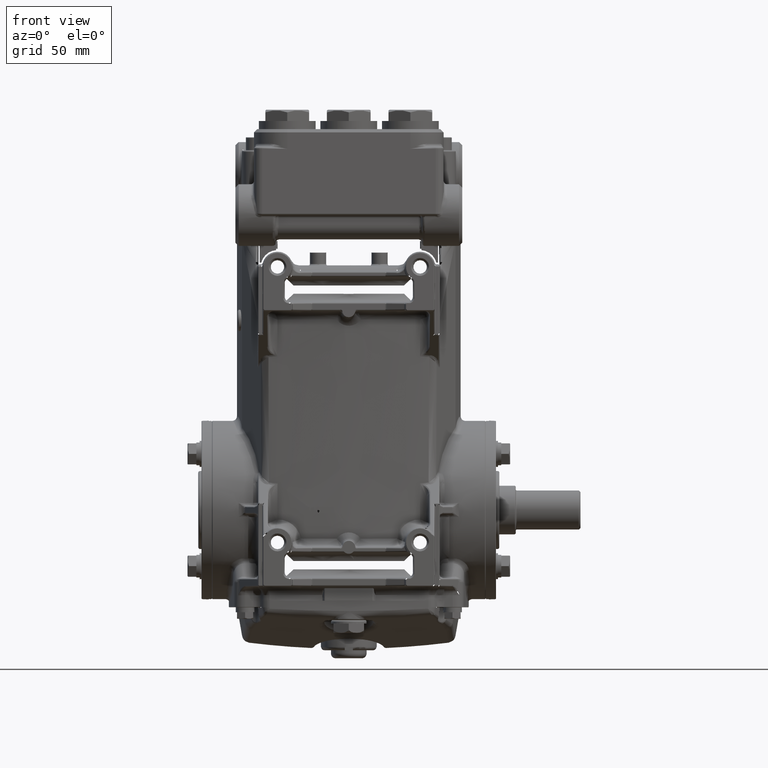
[diagram: clean part render]
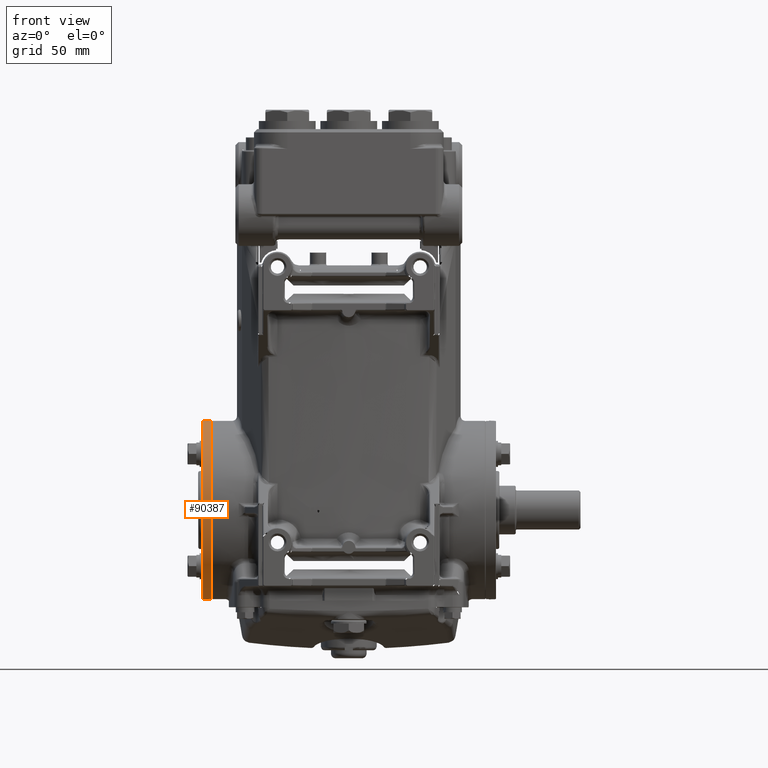
[diagram: same view with one face highlighted and labeled with its STEP entity id]
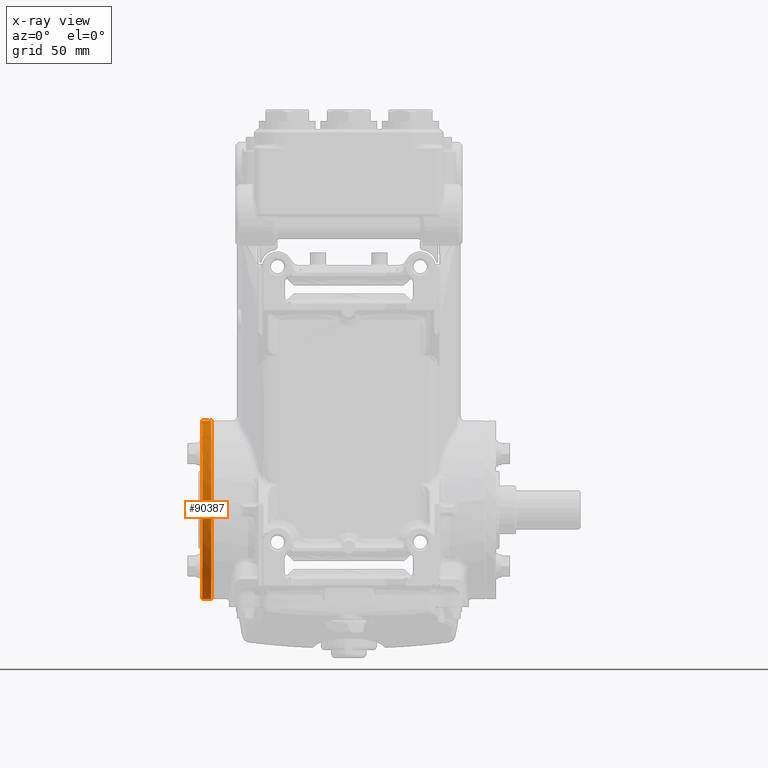
[diagram: x-ray of the same camera — body ghosted, the highlighted face saturated]
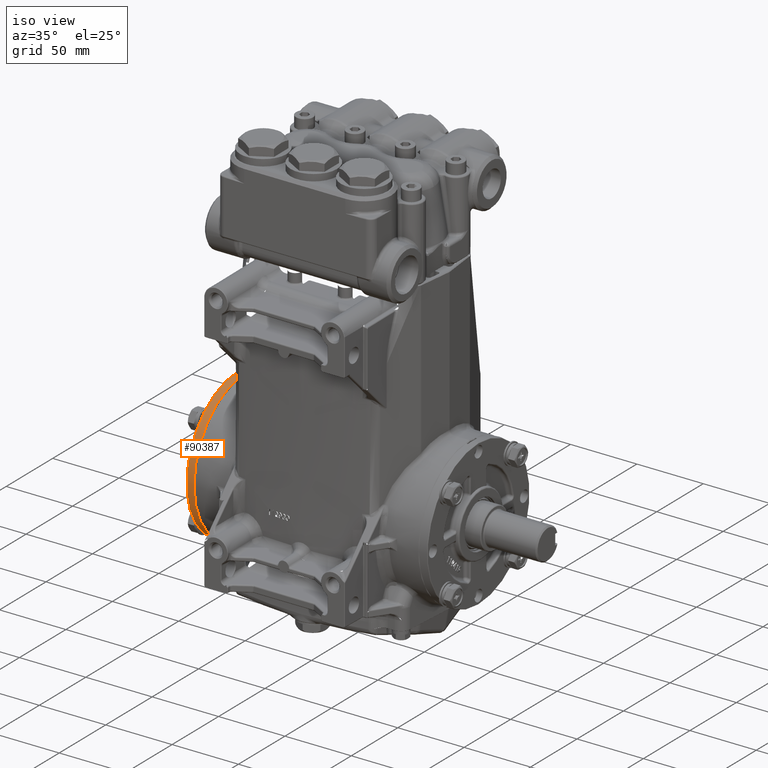
[diagram: same view with one face highlighted and labeled with its STEP entity id]
A machine part, front view. The second image highlights one B-rep face of the part: STEP entity #90387.
The next image is the same camera in x-ray: the body ghosted, the highlighted face saturated — about 0% of this face is hidden behind the body in this view.
A second angle (iso view) of the same face is appended — the face is thin or edge-on in the first view.
In plain terms, the highlighted conical surface has half-angle 2 deg.
Its self-contained STEP definition (entity closure, byte-faithful):
#346 = DIRECTION ( 'NONE',  ( 1.000000000000000000, -1.110223024625156294E-16, 0.000000000000000000 ) ) ;
#2370 = VERTEX_POINT ( 'NONE', #33422 ) ;
#2626 = DIRECTION ( 'NONE',  ( 1.000000000000000000, -1.110223024625156294E-16, 0.000000000000000000 ) ) ;
#3146 = EDGE_CURVE ( 'NONE', #2370, #48736, #77003, .T. ) ;
#4235 = CARTESIAN_POINT ( 'NONE',  ( -3.399606299212596827, -4.336515525571941142E-16, 0.000000000000000000 ) ) ;
#7192 = CONICAL_SURFACE ( 'NONE', #93467, 2.165354330708661568, 0.03490658503987879163 ) ;
#7231 = CARTESIAN_POINT ( 'NONE',  ( -3.399606299212596827, -4.336515525571941142E-16, -2.171541081209166890 ) ) ;
#7461 = DIRECTION ( 'NONE',  ( 0.9993908270190959842, -1.109546706755777115E-16, -0.03489949670249316988 ) ) ;
#9212 = CARTESIAN_POINT ( 'NONE',  ( -3.557773612139810027, -1.624245667563295346E-16, 2.166017756933307226 ) ) ;
#11244 = DIRECTION ( 'NONE',  ( 0.000000000000000000, 0.000000000000000000, 1.000000000000000000 ) ) ;
#13196 = DIRECTION ( 'NONE',  ( 0.000000000000000000, 0.000000000000000000, -1.000000000000000000 ) ) ;
#16353 = EDGE_CURVE ( 'NONE', #54274, #57610, #103977, .T. ) ;
#18620 = ORIENTED_EDGE ( 'NONE', *, *, #48348, .T. ) ;
#18780 = VECTOR ( 'NONE', #7461, 39.37007874015748143 ) ;
#26576 = CARTESIAN_POINT ( 'NONE',  ( -3.399606299212596827, -1.677144691252152325E-16, 2.171541081209166890 ) ) ;
#28320 = CARTESIAN_POINT ( 'NONE',  ( -3.399606299212596827, -0.1943756935005851449, 2.162824254800939983 ) ) ;
#29057 = ORIENTED_EDGE ( 'NONE', *, *, #122659, .T. ) ;
#30013 = ORIENTED_EDGE ( 'NONE', *, *, #38468, .T. ) ;
#30205 = B_SPLINE_CURVE_WITH_KNOTS ( 'NONE', 3,
 ( #83216, #63744, #93856, #93250 ),
 .UNSPECIFIED., .F., .F.,
 ( 4, 4 ),
 ( 2.002237295446668315E-07, 0.001501877530600107457 ),
 .UNSPECIFIED. ) ;
#30261 = CARTESIAN_POINT ( 'NONE',  ( -3.399606299212596827, -4.336515525571941142E-16, 0.000000000000000000 ) ) ;
#30878 = DIRECTION ( 'NONE',  ( 0.000000000000000000, 0.000000000000000000, -1.000000000000000000 ) ) ;
#31583 = B_SPLINE_CURVE_WITH_KNOTS ( 'NONE', 3,
 ( #70901, #101025, #109766, #62717 ),
 .UNSPECIFIED., .F., .F.,
 ( 4, 4 ),
 ( 0.0003005355255671438366, 0.001802212832437706091 ),
 .UNSPECIFIED. ) ;
#33422 = CARTESIAN_POINT ( 'NONE',  ( -3.399606299212596827, -0.1943756935005852005, -2.162824254800939983 ) ) ;
#34885 = VECTOR ( 'NONE', #48239, 39.37007874015748143 ) ;
#35382 = VERTEX_POINT ( 'NONE', #26576 ) ;
#36285 = CIRCLE ( 'NONE', #120425, 2.171541081209166446 ) ;
#38293 = ORIENTED_EDGE ( 'NONE', *, *, #16353, .F. ) ;
#38468 = EDGE_CURVE ( 'NONE', #109987, #117654, #76698, .T. ) ;
#38828 = AXIS2_PLACEMENT_3D ( 'NONE', #30261, #2626, #30878 ) ;
#41835 = VERTEX_POINT ( 'NONE', #28320 ) ;
#43315 = ORIENTED_EDGE ( 'NONE', *, *, #97171, .T. ) ;
#48239 = DIRECTION ( 'NONE',  ( 0.9993908270190959842, -1.066807149827215396E-16, 0.03489949670249316988 ) ) ;
#48348 = EDGE_CURVE ( 'NONE', #54274, #41835, #31583, .T. ) ;
#48736 = VERTEX_POINT ( 'NONE', #7231 ) ;
#50197 = DIRECTION ( 'NONE',  ( 1.000000000000000000, -1.110223024625156294E-16, -0.000000000000000000 ) ) ;
#54274 = VERTEX_POINT ( 'NONE', #82670 ) ;
#55838 = LINE ( 'NONE', #94166, #34885 ) ;
#57610 = VERTEX_POINT ( 'NONE', #101290 ) ;
#57792 = EDGE_LOOP ( 'NONE', ( #109012, #30013, #29057, #95142, #43315, #38293, #18620, #101318 ) ) ;
#59507 = CARTESIAN_POINT ( 'NONE',  ( -3.557773612139810027, -4.281497205218469865E-16, -2.166017756933307226 ) ) ;
#60807 = DIRECTION ( 'NONE',  ( 1.000000000000000000, -1.110223024625156294E-16, 0.000000000000000000 ) ) ;
#60947 = FACE_OUTER_BOUND ( 'NONE', #57792, .T. ) ;
#62717 = CARTESIAN_POINT ( 'NONE',  ( -3.399606299212596827, -0.1943756935005851449, 2.162824254800939983 ) ) ;
#63744 = CARTESIAN_POINT ( 'NONE',  ( -3.379921268556475678, -0.1950631099185656803, -2.163452662747427979 ) ) ;
#69662 = CARTESIAN_POINT ( 'NONE',  ( -3.557773612139810027, -4.160914533017056389E-16, 0.000000000000000000 ) ) ;
#70249 = DIRECTION ( 'NONE',  ( 0.000000000000000000, 0.000000000000000000, -1.000000000000000000 ) ) ;
#70901 = CARTESIAN_POINT ( 'NONE',  ( -3.340551181102360268, -0.1964379436674207613, 2.164708658562755517 ) ) ;
#71404 = EDGE_CURVE ( 'NONE', #109987, #35382, #55838, .T. ) ;
#76698 = CIRCLE ( 'NONE', #94714, 2.166017756933307226 ) ;
#77003 = CIRCLE ( 'NONE', #38828, 2.171541081209166446 ) ;
#82670 = CARTESIAN_POINT ( 'NONE',  ( -3.340551181102360268, -0.1964379436674207613, 2.164708658562755517 ) ) ;
#82892 = CARTESIAN_POINT ( 'NONE',  ( -3.576771653543305618, -4.139822470028114052E-16, -2.165354330708661568 ) ) ;
#83216 = CARTESIAN_POINT ( 'NONE',  ( -3.399606299212596827, -0.1943756935005852005, -2.162824254800939983 ) ) ;
#85069 = EDGE_CURVE ( 'NONE', #35382, #41835, #36285, .T. ) ;
#88035 = AXIS2_PLACEMENT_3D ( 'NONE', #104613, #346, #105821 ) ;
#90387 = ADVANCED_FACE ( 'NONE', ( #60947 ), #7192, .T. ) ;
#93250 = CARTESIAN_POINT ( 'NONE',  ( -3.340551181102360268, -0.1964379436674208168, -2.164708658562756849 ) ) ;
#93467 = AXIS2_PLACEMENT_3D ( 'NONE', #109875, #108059, #13196 ) ;
#93856 = CARTESIAN_POINT ( 'NONE',  ( -3.360236229175032285, -0.1957505266412410405, -2.164080797097100106 ) ) ;
#94166 = CARTESIAN_POINT ( 'NONE',  ( -3.576771653543305618, -1.488028219905891821E-16, 2.165354330708661568 ) ) ;
#94714 = AXIS2_PLACEMENT_3D ( 'NONE', #69662, #50197, #11244 ) ;
#95142 = ORIENTED_EDGE ( 'NONE', *, *, #3146, .F. ) ;
#97171 = EDGE_CURVE ( 'NONE', #2370, #57610, #30205, .T. ) ;
#101025 = CARTESIAN_POINT ( 'NONE',  ( -3.360236229175032285, -0.1957505266412410405, 2.164080797097100106 ) ) ;
#101290 = CARTESIAN_POINT ( 'NONE',  ( -3.340551181102360268, -0.1964379436674208168, -2.164708658562756849 ) ) ;
#101318 = ORIENTED_EDGE ( 'NONE', *, *, #85069, .F. ) ;
#103561 = LINE ( 'NONE', #82892, #18780 ) ;
#103977 = CIRCLE ( 'NONE', #88035, 2.173603331376001702 ) ;
#104613 = CARTESIAN_POINT ( 'NONE',  ( -3.340551181102360268, -4.402079877419883341E-16, 0.000000000000000000 ) ) ;
#105821 = DIRECTION ( 'NONE',  ( 0.000000000000000000, 0.000000000000000000, -1.000000000000000000 ) ) ;
#108059 = DIRECTION ( 'NONE',  ( 1.000000000000000000, -1.110223024625156294E-16, 0.000000000000000000 ) ) ;
#109012 = ORIENTED_EDGE ( 'NONE', *, *, #71404, .F. ) ;
#109766 = CARTESIAN_POINT ( 'NONE',  ( -3.379921268556475678, -0.1950631099185656803, 2.163452662747427979 ) ) ;
#109875 = CARTESIAN_POINT ( 'NONE',  ( -3.576771653543305618, -4.139822470028114052E-16, 0.000000000000000000 ) ) ;
#109987 = VERTEX_POINT ( 'NONE', #9212 ) ;
#117654 = VERTEX_POINT ( 'NONE', #59507 ) ;
#120425 = AXIS2_PLACEMENT_3D ( 'NONE', #4235, #60807, #70249 ) ;
#122659 = EDGE_CURVE ( 'NONE', #117654, #48736, #103561, .T. ) ;